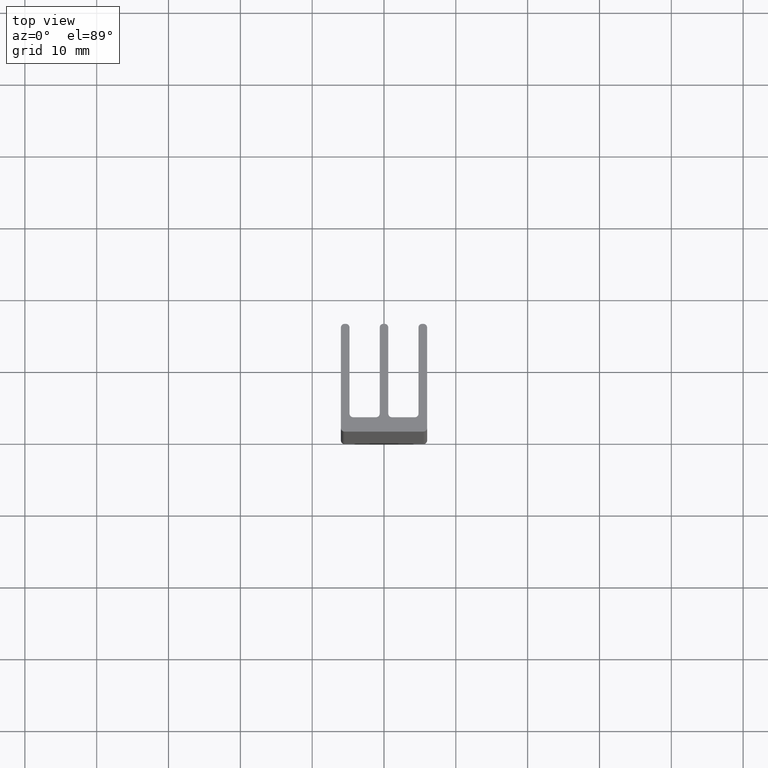
[diagram: clean part render]
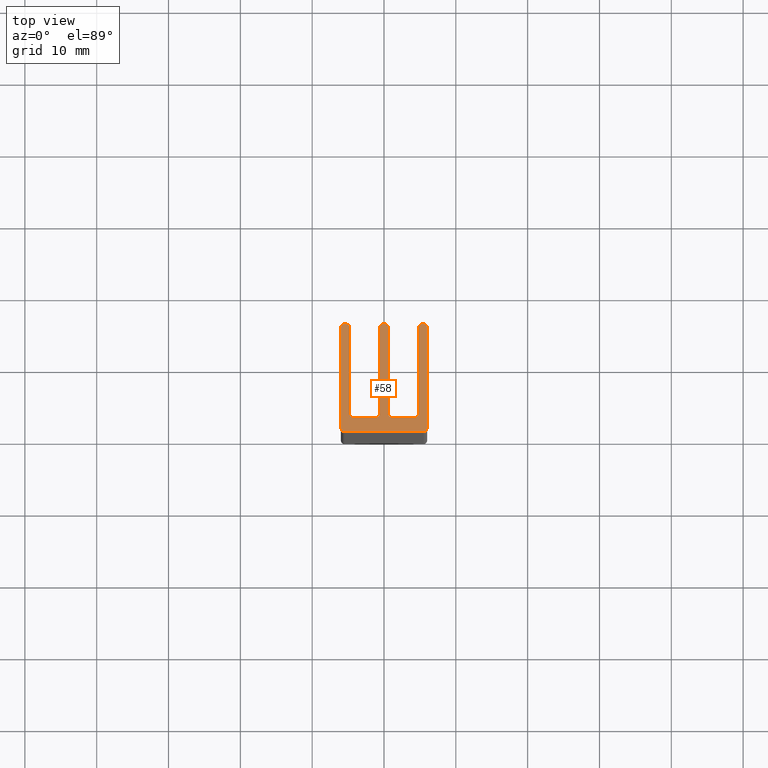
[diagram: same view with one face highlighted and labeled with its STEP entity id]
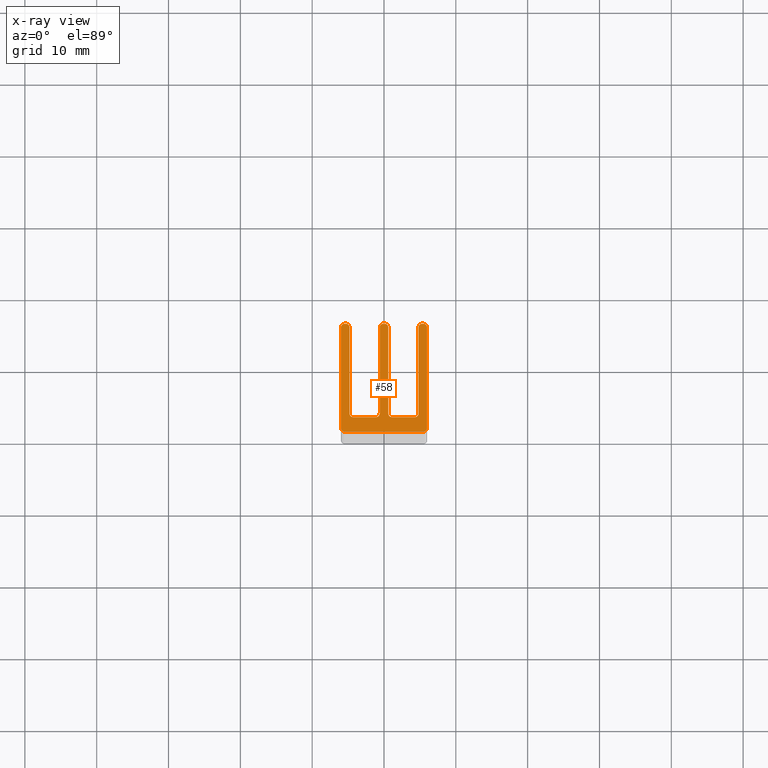
[diagram: x-ray of the same camera — body ghosted, the highlighted face saturated]
A machine part, top view. The second image highlights one B-rep face of the part: STEP entity #58.
The next image is the same camera in x-ray: the body ghosted, the highlighted face saturated — about 0% of this face is hidden behind the body in this view.
In plain terms, the highlighted planar face has unit normal (0, 0, 1).
Its self-contained STEP definition (entity closure, byte-faithful):
#5 = AXIS2_PLACEMENT_3D ( 'NONE', #314, #630, #436 ) ;
#17 = VERTEX_POINT ( 'NONE', #742 ) ;
#19 = CIRCLE ( 'NONE', #728, 0.5000000000000004441 ) ;
#24 = EDGE_CURVE ( 'NONE', #355, #476, #19, .T. ) ;
#30 = VERTEX_POINT ( 'NONE', #321 ) ;
#35 = AXIS2_PLACEMENT_3D ( 'NONE', #124, #197, #820 ) ;
#37 = EDGE_CURVE ( 'NONE', #287, #644, #333, .T. ) ;
#38 = CIRCLE ( 'NONE', #167, 0.5000000000000004441 ) ;
#42 = LINE ( 'NONE', #808, #589 ) ;
#52 = ORIENTED_EDGE ( 'NONE', *, *, #737, .T. ) ;
#57 = PLANE ( 'NONE',  #308 ) ;
#58 = ADVANCED_FACE ( 'NONE', ( #470 ), #57, .T. ) ;
#68 = EDGE_CURVE ( 'NONE', #372, #287, #833, .T. ) ;
#71 = DIRECTION ( 'NONE',  ( 1.000000000000000000, 0.000000000000000000, 0.000000000000000000 ) ) ;
#75 = EDGE_CURVE ( 'NONE', #242, #857, #125, .T. ) ;
#93 = CARTESIAN_POINT ( 'NONE',  ( -0.6000000000000013101, 14.49999999999999822, 100.0000000000000000 ) ) ;
#103 = CARTESIAN_POINT ( 'NONE',  ( 0.1000000000000013933, 15.00000000000000000, 100.0000000000000000 ) ) ;
#109 = EDGE_CURVE ( 'NONE', #644, #282, #491, .T. ) ;
#111 = LINE ( 'NONE', #390, #250 ) ;
#113 = DIRECTION ( 'NONE',  ( -0.000000000000000000, -1.000000000000000000, -0.000000000000000000 ) ) ;
#118 = ORIENTED_EDGE ( 'NONE', *, *, #24, .T. ) ;
#121 = DIRECTION ( 'NONE',  ( 0.000000000000000000, 0.000000000000000000, 1.000000000000000000 ) ) ;
#122 = EDGE_CURVE ( 'NONE', #676, #367, #548, .T. ) ;
#124 = CARTESIAN_POINT ( 'NONE',  ( 5.500000000000001776, 14.49999999999999822, 100.0000000000000000 ) ) ;
#125 = CIRCLE ( 'NONE', #35, 0.5000000000000004441 ) ;
#127 = DIRECTION ( 'NONE',  ( -1.000000000000000000, -0.000000000000000000, -0.000000000000000000 ) ) ;
#129 = DIRECTION ( 'NONE',  ( 1.000000000000000000, 0.000000000000000000, 0.000000000000000000 ) ) ;
#130 = CARTESIAN_POINT ( 'NONE',  ( -5.500000000000001776, 14.49999999999999822, 100.0000000000000000 ) ) ;
#131 = ORIENTED_EDGE ( 'NONE', *, *, #695, .T. ) ;
#133 = CARTESIAN_POINT ( 'NONE',  ( -4.300000000000003375, 2.000000000000000000, 100.0000000000000000 ) ) ;
#135 = VERTEX_POINT ( 'NONE', #849 ) ;
#137 = DIRECTION ( 'NONE',  ( 1.000000000000000000, 0.000000000000000000, 0.000000000000000000 ) ) ;
#140 = EDGE_CURVE ( 'NONE', #460, #215, #267, .T. ) ;
#142 = ORIENTED_EDGE ( 'NONE', *, *, #505, .T. ) ;
#147 = VECTOR ( 'NONE', #749, 1000.000000000000000 ) ;
#158 = EDGE_CURVE ( 'NONE', #175, #599, #216, .T. ) ;
#165 = AXIS2_PLACEMENT_3D ( 'NONE', #130, #754, #350 ) ;
#167 = AXIS2_PLACEMENT_3D ( 'NONE', #485, #915, #129 ) ;
#173 = EDGE_CURVE ( 'NONE', #367, #175, #421, .T. ) ;
#175 = VERTEX_POINT ( 'NONE', #339 ) ;
#191 = DIRECTION ( 'NONE',  ( 0.000000000000000000, 0.000000000000000000, 1.000000000000000000 ) ) ;
#192 = EDGE_LOOP ( 'NONE', ( #363, #729, #249, #635, #830, #913, #52, #646, #825, #709, #198, #131, #650, #263, #142, #585, #683, #259, #724, #224, #118, #238, #346, #374 ) ) ;
#193 = EDGE_CURVE ( 'NONE', #30, #242, #492, .T. ) ;
#197 = DIRECTION ( 'NONE',  ( 0.000000000000000000, 0.000000000000000000, 1.000000000000000000 ) ) ;
#198 = ORIENTED_EDGE ( 'NONE', *, *, #158, .T. ) ;
#201 = DIRECTION ( 'NONE',  ( -0.000000000000000000, -0.000000000000000000, -1.000000000000000000 ) ) ;
#206 = EDGE_CURVE ( 'NONE', #700, #355, #448, .T. ) ;
#215 = VERTEX_POINT ( 'NONE', #93 ) ;
#216 = CIRCLE ( 'NONE', #165, 0.5000000000000004441 ) ;
#224 = ORIENTED_EDGE ( 'NONE', *, *, #206, .T. ) ;
#232 = EDGE_CURVE ( 'NONE', #867, #255, #268, .T. ) ;
#233 = AXIS2_PLACEMENT_3D ( 'NONE', #827, #121, #71 ) ;
#237 = DIRECTION ( 'NONE',  ( -1.807003620809173954E-17, -1.000000000000000000, -0.000000000000000000 ) ) ;
#238 = ORIENTED_EDGE ( 'NONE', *, *, #576, .T. ) ;
#242 = VERTEX_POINT ( 'NONE', #896 ) ;
#243 = VERTEX_POINT ( 'NONE', #477 ) ;
#249 = ORIENTED_EDGE ( 'NONE', *, *, #140, .T. ) ;
#250 = VECTOR ( 'NONE', #127, 1000.000000000000000 ) ;
#253 = DIRECTION ( 'NONE',  ( 0.000000000000000000, 0.000000000000000000, 1.000000000000000000 ) ) ;
#255 = VERTEX_POINT ( 'NONE', #670 ) ;
#258 = DIRECTION ( 'NONE',  ( 1.000000000000000000, 0.000000000000000000, 0.000000000000000000 ) ) ;
#259 = ORIENTED_EDGE ( 'NONE', *, *, #319, .T. ) ;
#261 = CARTESIAN_POINT ( 'NONE',  ( 5.500000000000001776, 15.00000000000000000, 100.0000000000000000 ) ) ;
#263 = ORIENTED_EDGE ( 'NONE', *, *, #272, .T. ) ;
#267 = CIRCLE ( 'NONE', #788, 0.5000000000000002220 ) ;
#268 = CIRCLE ( 'NONE', #384, 0.5000000000000004441 ) ;
#270 = CIRCLE ( 'NONE', #233, 0.5000000000000004441 ) ;
#271 = CARTESIAN_POINT ( 'NONE',  ( 5.500000000000001776, -2.168404344971008868E-16, 100.0000000000000000 ) ) ;
#272 = EDGE_CURVE ( 'NONE', #255, #863, #538, .T. ) ;
#282 = VERTEX_POINT ( 'NONE', #103 ) ;
#284 = AXIS2_PLACEMENT_3D ( 'NONE', #899, #527, #258 ) ;
#287 = VERTEX_POINT ( 'NONE', #524 ) ;
#290 = DIRECTION ( 'NONE',  ( 0.000000000000000000, 0.000000000000000000, 1.000000000000000000 ) ) ;
#297 = CIRCLE ( 'NONE', #5, 0.5000000000000004441 ) ;
#308 = AXIS2_PLACEMENT_3D ( 'NONE', #746, #253, #475 ) ;
#309 = CARTESIAN_POINT ( 'NONE',  ( -6.000000000000001776, 14.49999999999999822, 100.0000000000000000 ) ) ;
#314 = CARTESIAN_POINT ( 'NONE',  ( 5.500000000000001776, 0.5000000000000000000, 100.0000000000000000 ) ) ;
#319 = EDGE_CURVE ( 'NONE', #857, #17, #111, .T. ) ;
#320 = CARTESIAN_POINT ( 'NONE',  ( -1.100000000000001643, 1.999999999999999556, 100.0000000000000000 ) ) ;
#321 = CARTESIAN_POINT ( 'NONE',  ( 6.000000000000001776, 0.5000000000000000000, 100.0000000000000000 ) ) ;
#327 = DIRECTION ( 'NONE',  ( -1.000000000000000000, 0.000000000000000000, 0.000000000000000000 ) ) ;
#331 = CARTESIAN_POINT ( 'NONE',  ( -5.500000000000001776, 0.000000000000000000, 100.0000000000000000 ) ) ;
#333 = LINE ( 'NONE', #888, #402 ) ;
#339 = CARTESIAN_POINT ( 'NONE',  ( -5.500000000000001776, 15.00000000000000000, 100.0000000000000000 ) ) ;
#341 = EDGE_CURVE ( 'NONE', #135, #676, #414, .T. ) ;
#346 = ORIENTED_EDGE ( 'NONE', *, *, #68, .T. ) ;
#347 = VECTOR ( 'NONE', #237, 1000.000000000000000 ) ;
#348 = DIRECTION ( 'NONE',  ( 1.445602896647339410E-16, 1.000000000000000000, -0.000000000000000000 ) ) ;
#350 = DIRECTION ( 'NONE',  ( -1.000000000000000000, 0.000000000000000000, 0.000000000000000000 ) ) ;
#353 = CARTESIAN_POINT ( 'NONE',  ( 6.000000000000001776, 0.5000000000000000000, 100.0000000000000000 ) ) ;
#355 = VERTEX_POINT ( 'NONE', #558 ) ;
#363 = ORIENTED_EDGE ( 'NONE', *, *, #109, .T. ) ;
#367 = VERTEX_POINT ( 'NONE', #706 ) ;
#369 = CARTESIAN_POINT ( 'NONE',  ( 0.6000000000000013101, 14.49999999999999822, 100.0000000000000000 ) ) ;
#370 = VECTOR ( 'NONE', #113, 1000.000000000000000 ) ;
#372 = VERTEX_POINT ( 'NONE', #765 ) ;
#374 = ORIENTED_EDGE ( 'NONE', *, *, #37, .T. ) ;
#379 = CARTESIAN_POINT ( 'NONE',  ( 4.800000000000002487, 14.49999999999999822, 100.0000000000000000 ) ) ;
#384 = AXIS2_PLACEMENT_3D ( 'NONE', #804, #290, #858 ) ;
#390 = CARTESIAN_POINT ( 'NONE',  ( 5.300000000000002487, 15.00000000000000000, 100.0000000000000000 ) ) ;
#402 = VECTOR ( 'NONE', #694, 1000.000000000000000 ) ;
#414 = LINE ( 'NONE', #701, #787 ) ;
#421 = LINE ( 'NONE', #626, #861 ) ;
#429 = AXIS2_PLACEMENT_3D ( 'NONE', #883, #201, #327 ) ;
#436 = DIRECTION ( 'NONE',  ( 1.000000000000000000, 0.000000000000000000, 0.000000000000000000 ) ) ;
#445 = DIRECTION ( 'NONE',  ( -1.000000000000000000, 0.000000000000000000, 0.000000000000000000 ) ) ;
#448 = LINE ( 'NONE', #379, #618 ) ;
#454 = CARTESIAN_POINT ( 'NONE',  ( 4.300000000000003375, 2.000000000000000000, 100.0000000000000000 ) ) ;
#460 = VERTEX_POINT ( 'NONE', #854 ) ;
#465 = DIRECTION ( 'NONE',  ( -1.000000000000000000, 0.000000000000000000, 0.000000000000000000 ) ) ;
#470 = FACE_OUTER_BOUND ( 'NONE', #192, .T. ) ;
#471 = DIRECTION ( 'NONE',  ( -1.000000000000000000, 0.000000000000000000, 0.000000000000000000 ) ) ;
#474 = LINE ( 'NONE', #133, #803 ) ;
#475 = DIRECTION ( 'NONE',  ( 1.000000000000000000, 0.000000000000000000, -0.000000000000000000 ) ) ;
#476 = VERTEX_POINT ( 'NONE', #568 ) ;
#477 = CARTESIAN_POINT ( 'NONE',  ( -0.6000000000000015321, 2.499999999999999556, 100.0000000000000000 ) ) ;
#479 = DIRECTION ( 'NONE',  ( -1.000000000000000000, 1.355252715606879803E-16, -0.000000000000000000 ) ) ;
#482 = AXIS2_PLACEMENT_3D ( 'NONE', #750, #839, #137 ) ;
#485 = CARTESIAN_POINT ( 'NONE',  ( -4.300000000000003375, 2.500000000000000000, 100.0000000000000000 ) ) ;
#491 = CIRCLE ( 'NONE', #284, 0.5000000000000002220 ) ;
#492 = LINE ( 'NONE', #353, #791 ) ;
#505 = EDGE_CURVE ( 'NONE', #863, #30, #297, .T. ) ;
#524 = CARTESIAN_POINT ( 'NONE',  ( 0.6000000000000015321, 2.499999999999999556, 100.0000000000000000 ) ) ;
#527 = DIRECTION ( 'NONE',  ( 0.000000000000000000, 0.000000000000000000, 1.000000000000000000 ) ) ;
#534 = DIRECTION ( 'NONE',  ( -1.000000000000000000, -1.355252715606879803E-16, 0.000000000000000000 ) ) ;
#538 = LINE ( 'NONE', #331, #147 ) ;
#539 = CARTESIAN_POINT ( 'NONE',  ( -6.000000000000001776, 0.5000000000000000000, 100.0000000000000000 ) ) ;
#548 = CIRCLE ( 'NONE', #659, 0.5000000000000004441 ) ;
#556 = EDGE_CURVE ( 'NONE', #282, #460, #42, .T. ) ;
#558 = CARTESIAN_POINT ( 'NONE',  ( 4.800000000000004263, 2.500000000000000000, 100.0000000000000000 ) ) ;
#568 = CARTESIAN_POINT ( 'NONE',  ( 4.300000000000003375, 2.000000000000000000, 100.0000000000000000 ) ) ;
#570 = EDGE_CURVE ( 'NONE', #215, #243, #667, .T. ) ;
#576 = EDGE_CURVE ( 'NONE', #476, #372, #869, .T. ) ;
#585 = ORIENTED_EDGE ( 'NONE', *, *, #193, .T. ) ;
#589 = VECTOR ( 'NONE', #445, 1000.000000000000000 ) ;
#594 = LINE ( 'NONE', #648, #370 ) ;
#597 = CARTESIAN_POINT ( 'NONE',  ( 4.800000000000002487, 14.49999999999999822, 100.0000000000000000 ) ) ;
#599 = VERTEX_POINT ( 'NONE', #309 ) ;
#608 = CARTESIAN_POINT ( 'NONE',  ( 4.300000000000003375, 2.500000000000000000, 100.0000000000000000 ) ) ;
#618 = VECTOR ( 'NONE', #732, 1000.000000000000000 ) ;
#622 = VERTEX_POINT ( 'NONE', #320 ) ;
#626 = CARTESIAN_POINT ( 'NONE',  ( -5.300000000000002487, 15.00000000000000000, 100.0000000000000000 ) ) ;
#630 = DIRECTION ( 'NONE',  ( 0.000000000000000000, 0.000000000000000000, 1.000000000000000000 ) ) ;
#635 = ORIENTED_EDGE ( 'NONE', *, *, #570, .T. ) ;
#644 = VERTEX_POINT ( 'NONE', #369 ) ;
#646 = ORIENTED_EDGE ( 'NONE', *, *, #341, .T. ) ;
#648 = CARTESIAN_POINT ( 'NONE',  ( -6.000000000000001776, 0.5000000000000000000, 100.0000000000000000 ) ) ;
#650 = ORIENTED_EDGE ( 'NONE', *, *, #232, .T. ) ;
#659 = AXIS2_PLACEMENT_3D ( 'NONE', #837, #191, #471 ) ;
#667 = LINE ( 'NONE', #890, #347 ) ;
#670 = CARTESIAN_POINT ( 'NONE',  ( -5.500000000000001776, 0.000000000000000000, 100.0000000000000000 ) ) ;
#676 = VERTEX_POINT ( 'NONE', #882 ) ;
#683 = ORIENTED_EDGE ( 'NONE', *, *, #75, .T. ) ;
#690 = DIRECTION ( 'NONE',  ( -0.000000000000000000, -0.000000000000000000, -1.000000000000000000 ) ) ;
#694 = DIRECTION ( 'NONE',  ( -1.807003620809173954E-17, 1.000000000000000000, 0.000000000000000000 ) ) ;
#695 = EDGE_CURVE ( 'NONE', #599, #867, #594, .T. ) ;
#700 = VERTEX_POINT ( 'NONE', #597 ) ;
#701 = CARTESIAN_POINT ( 'NONE',  ( -4.800000000000002487, 14.49999999999999822, 100.0000000000000000 ) ) ;
#704 = CARTESIAN_POINT ( 'NONE',  ( -0.1000000000000014488, 14.49999999999999822, 100.0000000000000000 ) ) ;
#706 = CARTESIAN_POINT ( 'NONE',  ( -5.300000000000002487, 15.00000000000000000, 100.0000000000000000 ) ) ;
#708 = DIRECTION ( 'NONE',  ( -1.000000000000000000, 0.000000000000000000, 0.000000000000000000 ) ) ;
#709 = ORIENTED_EDGE ( 'NONE', *, *, #173, .T. ) ;
#724 = ORIENTED_EDGE ( 'NONE', *, *, #805, .T. ) ;
#728 = AXIS2_PLACEMENT_3D ( 'NONE', #608, #690, #465 ) ;
#729 = ORIENTED_EDGE ( 'NONE', *, *, #556, .T. ) ;
#732 = DIRECTION ( 'NONE',  ( 1.445602896647339410E-16, -1.000000000000000000, 0.000000000000000000 ) ) ;
#737 = EDGE_CURVE ( 'NONE', #840, #135, #38, .T. ) ;
#742 = CARTESIAN_POINT ( 'NONE',  ( 5.300000000000002487, 15.00000000000000000, 100.0000000000000000 ) ) ;
#746 = CARTESIAN_POINT ( 'NONE',  ( 0.1000000000000014488, 14.49999999999999822, 100.0000000000000000 ) ) ;
#749 = DIRECTION ( 'NONE',  ( 1.000000000000000000, 0.000000000000000000, 0.000000000000000000 ) ) ;
#750 = CARTESIAN_POINT ( 'NONE',  ( -1.100000000000001643, 2.499999999999999556, 100.0000000000000000 ) ) ;
#754 = DIRECTION ( 'NONE',  ( 0.000000000000000000, 0.000000000000000000, 1.000000000000000000 ) ) ;
#759 = EDGE_CURVE ( 'NONE', #622, #840, #474, .T. ) ;
#763 = DIRECTION ( 'NONE',  ( -1.000000000000000000, 0.000000000000000000, 0.000000000000000000 ) ) ;
#765 = CARTESIAN_POINT ( 'NONE',  ( 1.100000000000001643, 1.999999999999999556, 100.0000000000000000 ) ) ;
#787 = VECTOR ( 'NONE', #348, 1000.000000000000000 ) ;
#788 = AXIS2_PLACEMENT_3D ( 'NONE', #704, #903, #763 ) ;
#790 = EDGE_CURVE ( 'NONE', #243, #622, #879, .T. ) ;
#791 = VECTOR ( 'NONE', #920, 1000.000000000000000 ) ;
#792 = VECTOR ( 'NONE', #534, 1000.000000000000000 ) ;
#803 = VECTOR ( 'NONE', #479, 1000.000000000000000 ) ;
#804 = CARTESIAN_POINT ( 'NONE',  ( -5.500000000000001776, 0.5000000000000000000, 100.0000000000000000 ) ) ;
#805 = EDGE_CURVE ( 'NONE', #17, #700, #270, .T. ) ;
#808 = CARTESIAN_POINT ( 'NONE',  ( 0.1000000000000013933, 15.00000000000000000, 100.0000000000000000 ) ) ;
#820 = DIRECTION ( 'NONE',  ( 1.000000000000000000, 0.000000000000000000, 0.000000000000000000 ) ) ;
#825 = ORIENTED_EDGE ( 'NONE', *, *, #122, .T. ) ;
#827 = CARTESIAN_POINT ( 'NONE',  ( 5.300000000000002487, 14.49999999999999822, 100.0000000000000000 ) ) ;
#830 = ORIENTED_EDGE ( 'NONE', *, *, #790, .T. ) ;
#833 = CIRCLE ( 'NONE', #429, 0.5000000000000000000 ) ;
#837 = CARTESIAN_POINT ( 'NONE',  ( -5.300000000000002487, 14.49999999999999822, 100.0000000000000000 ) ) ;
#839 = DIRECTION ( 'NONE',  ( -0.000000000000000000, -0.000000000000000000, -1.000000000000000000 ) ) ;
#840 = VERTEX_POINT ( 'NONE', #902 ) ;
#849 = CARTESIAN_POINT ( 'NONE',  ( -4.800000000000004263, 2.500000000000000000, 100.0000000000000000 ) ) ;
#854 = CARTESIAN_POINT ( 'NONE',  ( -0.1000000000000013795, 15.00000000000000000, 100.0000000000000000 ) ) ;
#857 = VERTEX_POINT ( 'NONE', #261 ) ;
#858 = DIRECTION ( 'NONE',  ( -1.000000000000000000, 0.000000000000000000, 0.000000000000000000 ) ) ;
#861 = VECTOR ( 'NONE', #708, 1000.000000000000000 ) ;
#863 = VERTEX_POINT ( 'NONE', #271 ) ;
#867 = VERTEX_POINT ( 'NONE', #539 ) ;
#869 = LINE ( 'NONE', #454, #792 ) ;
#879 = CIRCLE ( 'NONE', #482, 0.5000000000000000000 ) ;
#882 = CARTESIAN_POINT ( 'NONE',  ( -4.800000000000002487, 14.49999999999999822, 100.0000000000000000 ) ) ;
#883 = CARTESIAN_POINT ( 'NONE',  ( 1.100000000000001643, 2.499999999999999556, 100.0000000000000000 ) ) ;
#888 = CARTESIAN_POINT ( 'NONE',  ( 0.6000000000000015321, 2.499999999999999556, 100.0000000000000000 ) ) ;
#890 = CARTESIAN_POINT ( 'NONE',  ( -0.6000000000000015321, 2.499999999999999556, 100.0000000000000000 ) ) ;
#896 = CARTESIAN_POINT ( 'NONE',  ( 6.000000000000001776, 14.49999999999999822, 100.0000000000000000 ) ) ;
#899 = CARTESIAN_POINT ( 'NONE',  ( 0.1000000000000014488, 14.49999999999999822, 100.0000000000000000 ) ) ;
#902 = CARTESIAN_POINT ( 'NONE',  ( -4.300000000000003375, 2.000000000000000000, 100.0000000000000000 ) ) ;
#903 = DIRECTION ( 'NONE',  ( 0.000000000000000000, 0.000000000000000000, 1.000000000000000000 ) ) ;
#913 = ORIENTED_EDGE ( 'NONE', *, *, #759, .T. ) ;
#915 = DIRECTION ( 'NONE',  ( -0.000000000000000000, -0.000000000000000000, -1.000000000000000000 ) ) ;
#920 = DIRECTION ( 'NONE',  ( 0.000000000000000000, 1.000000000000000000, 0.000000000000000000 ) ) ;